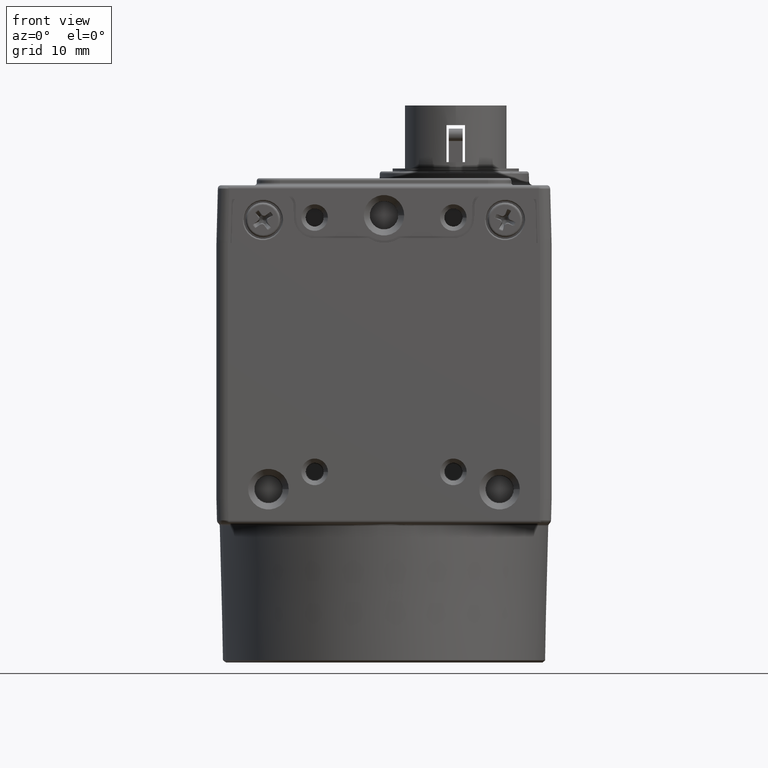
[diagram: clean part render]
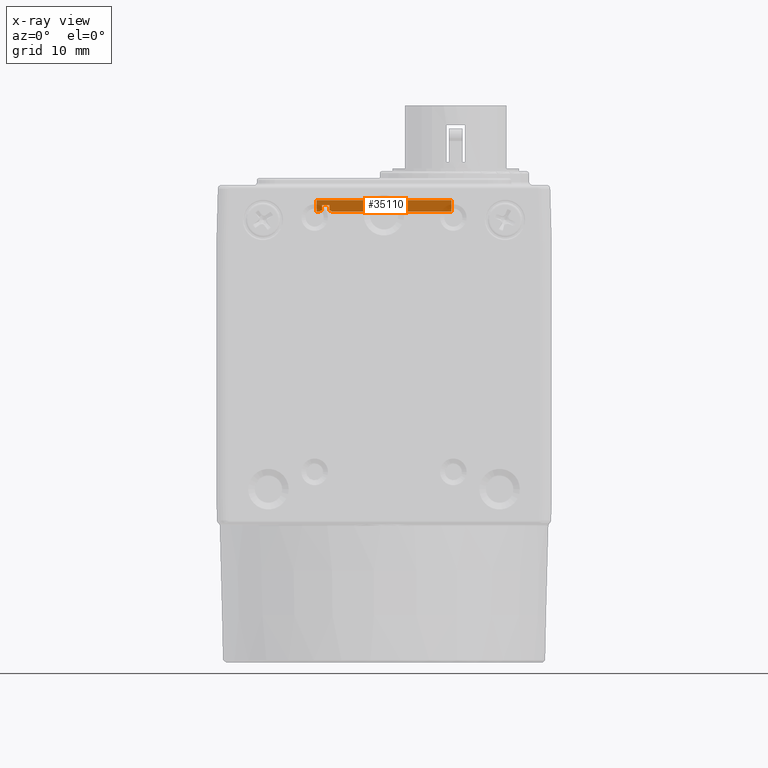
[diagram: x-ray — body ghosted, one internal face saturated and labeled with its STEP entity id]
A machine part, front view, then the same camera in x-ray: the body is ghosted and one INTERNAL B-rep face — a face not visible from any outside direction — is saturated and labeled: STEP entity #35110.
In plain terms, the highlighted planar face has unit normal (0, 1, 0).
Its self-contained STEP definition (entity closure, byte-faithful):
#25704=CARTESIAN_POINT('',(0.210000000000442,-5.620000000000109,39.000208026129258));
#25705=VERTEX_POINT('',#25704);
#25712=CARTESIAN_POINT('',(5.825000000000442,-5.619999999999682,39.000000000000014));
#25713=VERTEX_POINT('',#25712);
#25714=CARTESIAN_POINT('',(0.210000000000442,-5.620000000000109,39.000000000000007));
#25715=DIRECTION('',(1.0,0.0,0.0));
#25716=VECTOR('',#25715,5.614999999999999);
#25717=LINE('',#25714,#25716);
#25718=EDGE_CURVE('',#25705,#25713,#25717,.T.);
#25804=CARTESIAN_POINT('',(-0.789999999999558,-5.620000000000185,39.000208026129258));
#25805=VERTEX_POINT('',#25804);
#25822=CARTESIAN_POINT('',(-4.539999999999559,-5.620000000000470,39.000208026129251));
#25823=VERTEX_POINT('',#25822);
#25830=CARTESIAN_POINT('',(-4.539999999999559,-5.620000000000471,39.0));
#25831=DIRECTION('',(1.0,0.0,0.0));
#25832=VECTOR('',#25831,3.750000000000001);
#25833=LINE('',#25830,#25832);
#25834=EDGE_CURVE('',#25823,#25805,#25833,.T.);
#25882=CARTESIAN_POINT('',(-5.824999999999560,-5.620000000000568,39.0));
#25883=VERTEX_POINT('',#25882);
#25891=CARTESIAN_POINT('',(-5.539999999999558,-5.620000000000545,39.000208026129251));
#25892=VERTEX_POINT('',#25891);
#25893=CARTESIAN_POINT('',(-5.824999999999560,-5.620000000000569,39.0));
#25894=DIRECTION('',(1.0,0.0,0.0));
#25895=VECTOR('',#25894,0.285000000000002);
#25896=LINE('',#25893,#25895);
#25897=EDGE_CURVE('',#25883,#25892,#25896,.T.);
#31081=CARTESIAN_POINT('',(-5.814999999999559,-5.620000000000555,40.000416052258494));
#31082=VERTEX_POINT('',#31081);
#31089=CARTESIAN_POINT('',(-5.824999999999561,-5.620000000000555,40.000416052258494));
#31090=VERTEX_POINT('',#31089);
#31091=CARTESIAN_POINT('',(-5.814999999999559,-5.620000000000555,40.000416052258494));
#31092=DIRECTION('',(-1.0,0.0,0.0));
#31093=VECTOR('',#31092,0.010000000000002);
#31094=LINE('',#31091,#31093);
#31095=EDGE_CURVE('',#31082,#31090,#31094,.T.);
#31122=CARTESIAN_POINT('',(-4.639999999999558,-5.620000000000466,39.100416052258502));
#31123=VERTEX_POINT('',#31122);
#31130=CARTESIAN_POINT('',(-4.639999999999558,-5.620000000000478,39.000416052258501));
#31131=DIRECTION('',(0.0,1.0,0.0));
#31132=DIRECTION('',(1.0,0.0,0.0));
#31133=AXIS2_PLACEMENT_3D('',#31130,#31131,#31132);
#31134=CIRCLE('',#31133,0.100000000000000);
#31135=EDGE_CURVE('',#31123,#25823,#31134,.T.);
#31147=CARTESIAN_POINT('',(-4.714999999999558,-5.620000000000474,39.100416052258502));
#31148=VERTEX_POINT('',#31147);
#31172=CARTESIAN_POINT('',(-4.714999999999558,-5.620000000000474,39.156270863825760));
#31173=VERTEX_POINT('',#31172);
#31180=CARTESIAN_POINT('',(-4.714999999999558,-5.620000000000482,39.156270863825760));
#31181=DIRECTION('',(0.0,0.0,-1.0));
#31182=VECTOR('',#31181,0.055854811567258);
#31183=LINE('',#31180,#31182);
#31184=EDGE_CURVE('',#31173,#31148,#31183,.T.);
#31330=CARTESIAN_POINT('',(-5.364999999999559,-5.620000000000522,39.156270863825753));
#31331=VERTEX_POINT('',#31330);
#31338=CARTESIAN_POINT('',(-5.364999999999559,-5.620000000000522,39.560416052258496));
#31339=VERTEX_POINT('',#31338);
#31340=CARTESIAN_POINT('',(-5.364999999999559,-5.620000000000531,39.560416052258496));
#31341=DIRECTION('',(0.0,0.0,-1.0));
#31342=VECTOR('',#31341,0.404145188432743);
#31343=LINE('',#31340,#31342);
#31344=EDGE_CURVE('',#31339,#31331,#31343,.T.);
#32028=CARTESIAN_POINT('',(-5.439999999999559,-5.620000000000529,39.100416052258495));
#32029=VERTEX_POINT('',#32028);
#32038=CARTESIAN_POINT('',(-5.439999999999557,-5.620000000000539,39.000416052258501));
#32039=DIRECTION('',(0.0,1.0,0.0));
#32040=DIRECTION('',(1.0,0.0,0.0));
#32041=AXIS2_PLACEMENT_3D('',#32038,#32039,#32040);
#32042=CIRCLE('',#32041,0.100000000000000);
#32043=EDGE_CURVE('',#25892,#32029,#32042,.T.);
#32632=CARTESIAN_POINT('',(0.035000000000442,-5.620000000000111,39.156270863825767));
#32633=VERTEX_POINT('',#32632);
#32640=CARTESIAN_POINT('',(0.035000000000442,-5.620000000000111,39.100416052258502));
#32641=VERTEX_POINT('',#32640);
#32642=CARTESIAN_POINT('',(0.035000000000442,-5.620000000000123,39.156270863825767));
#32643=DIRECTION('',(0.0,0.0,-1.0));
#32644=VECTOR('',#32643,0.055854811567258);
#32645=LINE('',#32642,#32644);
#32646=EDGE_CURVE('',#32633,#32641,#32645,.T.);
#32663=CARTESIAN_POINT('',(-0.614999999999559,-5.620000000000161,39.560416052258503));
#32664=VERTEX_POINT('',#32663);
#32671=CARTESIAN_POINT('',(0.035000000000441,-5.620000000000111,39.560416052258503));
#32672=VERTEX_POINT('',#32671);
#32673=CARTESIAN_POINT('',(-0.614999999999559,-5.620000000000161,39.560416052258503));
#32674=DIRECTION('',(1.0,0.0,0.0));
#32675=VECTOR('',#32674,0.650000000000000);
#32676=LINE('',#32673,#32675);
#32677=EDGE_CURVE('',#32664,#32672,#32676,.T.);
#32778=CARTESIAN_POINT('',(0.110000000000442,-5.620000000000106,39.100416052258502));
#32779=VERTEX_POINT('',#32778);
#32786=CARTESIAN_POINT('',(0.110000000000442,-5.620000000000117,39.000416052258508));
#32787=DIRECTION('',(0.0,1.0,0.0));
#32788=DIRECTION('',(1.0,0.0,0.0));
#32789=AXIS2_PLACEMENT_3D('',#32786,#32787,#32788);
#32790=CIRCLE('',#32789,0.100000000000000);
#32791=EDGE_CURVE('',#32779,#25705,#32790,.T.);
#32801=CARTESIAN_POINT('',(-0.689999999999558,-5.620000000000167,39.100416052258502));
#32802=VERTEX_POINT('',#32801);
#32811=CARTESIAN_POINT('',(-0.689999999999558,-5.620000000000179,39.000416052258508));
#32812=DIRECTION('',(0.0,1.0,0.0));
#32813=DIRECTION('',(1.0,0.0,0.0));
#32814=AXIS2_PLACEMENT_3D('',#32811,#32812,#32813);
#32815=CIRCLE('',#32814,0.100000000000000);
#32816=EDGE_CURVE('',#25805,#32802,#32815,.T.);
#32851=CARTESIAN_POINT('',(0.035000000000442,-5.620000000000111,39.100416052258502));
#32852=DIRECTION('',(1.0,0.0,0.0));
#32853=VECTOR('',#32852,0.075000000000000);
#32854=LINE('',#32851,#32853);
#32855=EDGE_CURVE('',#32641,#32779,#32854,.T.);
#32867=CARTESIAN_POINT('',(0.035000000000441,-5.620000000000122,39.560416052258503));
#32868=DIRECTION('',(0.0,0.0,-1.0));
#32869=VECTOR('',#32868,0.404145188432743);
#32870=LINE('',#32867,#32869);
#32871=EDGE_CURVE('',#32672,#32633,#32870,.T.);
#32887=CARTESIAN_POINT('',(-0.614999999999558,-5.620000000000162,39.100416052258502));
#32888=VERTEX_POINT('',#32887);
#32897=CARTESIAN_POINT('',(-0.689999999999558,-5.620000000000167,39.100416052258502));
#32898=DIRECTION('',(1.0,0.0,0.0));
#32899=VECTOR('',#32898,0.075000000000000);
#32900=LINE('',#32897,#32899);
#32901=EDGE_CURVE('',#32802,#32888,#32900,.T.);
#32951=CARTESIAN_POINT('',(-0.614999999999558,-5.620000000000162,39.156270863825767));
#32952=VERTEX_POINT('',#32951);
#32953=CARTESIAN_POINT('',(-0.614999999999558,-5.620000000000172,39.156270863825767));
#32954=DIRECTION('',(0.0,0.0,-1.0));
#32955=VECTOR('',#32954,0.055854811567258);
#32956=LINE('',#32953,#32955);
#32957=EDGE_CURVE('',#32952,#32888,#32956,.T.);
#33056=CARTESIAN_POINT('',(-4.714999999999558,-5.620000000000473,39.560416052258496));
#33057=VERTEX_POINT('',#33056);
#33058=CARTESIAN_POINT('',(-5.364999999999559,-5.620000000000522,39.560416052258496));
#33059=DIRECTION('',(1.0,0.0,0.0));
#33060=VECTOR('',#33059,0.650000000000001);
#33061=LINE('',#33058,#33060);
#33062=EDGE_CURVE('',#31339,#33057,#33061,.T.);
#33146=CARTESIAN_POINT('',(-4.714999999999558,-5.620000000000474,39.100416052258502));
#33147=DIRECTION('',(1.0,0.0,0.0));
#33148=VECTOR('',#33147,0.075000000000000);
#33149=LINE('',#33146,#33148);
#33150=EDGE_CURVE('',#31148,#31123,#33149,.T.);
#33160=CARTESIAN_POINT('',(-5.364999999999559,-5.620000000000522,39.100416052258495));
#33161=VERTEX_POINT('',#33160);
#33162=CARTESIAN_POINT('',(-5.364999999999559,-5.620000000000532,39.156270863825753));
#33163=DIRECTION('',(0.0,0.0,-1.0));
#33164=VECTOR('',#33163,0.055854811567258);
#33165=LINE('',#33162,#33164);
#33166=EDGE_CURVE('',#31331,#33161,#33165,.T.);
#33193=CARTESIAN_POINT('',(-5.439999999999559,-5.620000000000529,39.100416052258495));
#33194=DIRECTION('',(1.0,0.0,0.0));
#33195=VECTOR('',#33194,0.074999999999999);
#33196=LINE('',#33193,#33195);
#33197=EDGE_CURVE('',#32029,#33161,#33196,.T.);
#34530=CARTESIAN_POINT('',(5.815000000000441,-5.619999999999671,40.000416052258515));
#34531=VERTEX_POINT('',#34530);
#34609=CARTESIAN_POINT('',(5.825000000000441,-5.619999999999670,40.000416052258515));
#34610=VERTEX_POINT('',#34609);
#34618=CARTESIAN_POINT('',(5.825000000000441,-5.619999999999670,40.000416052258515));
#34619=DIRECTION('',(-1.0,0.0,0.0));
#34620=VECTOR('',#34619,0.010000000000000);
#34621=LINE('',#34618,#34620);
#34622=EDGE_CURVE('',#34610,#34531,#34621,.T.);
#35048=CARTESIAN_POINT('',(-5.824999999999559,-5.620000000000568,39.000000000000007));
#35049=DIRECTION('',(0.0,0.0,1.0));
#35050=VECTOR('',#35049,1.000416052258494);
#35051=LINE('',#35048,#35050);
#35052=EDGE_CURVE('',#25883,#31090,#35051,.T.);
#35057=CARTESIAN_POINT('',(4.433259E-013,-5.620000000000127,38.350416052258510));
#35058=DIRECTION('',(0.0,1.0,0.0));
#35059=DIRECTION('',(1.0,0.0,0.0));
#35060=AXIS2_PLACEMENT_3D('',#35057,#35058,#35059);
#35061=PLANE('',#35060);
#35062=ORIENTED_EDGE('',*,*,#32791,.F.);
#35063=ORIENTED_EDGE('',*,*,#32855,.F.);
#35064=ORIENTED_EDGE('',*,*,#32646,.F.);
#35065=ORIENTED_EDGE('',*,*,#32871,.F.);
#35066=ORIENTED_EDGE('',*,*,#32677,.F.);
#35067=CARTESIAN_POINT('',(-0.614999999999559,-5.620000000000172,39.560416052258503));
#35068=DIRECTION('',(0.0,0.0,-1.0));
#35069=VECTOR('',#35068,0.404145188432743);
#35070=LINE('',#35067,#35069);
#35071=EDGE_CURVE('',#32664,#32952,#35070,.T.);
#35072=ORIENTED_EDGE('',*,*,#35071,.T.);
#35073=ORIENTED_EDGE('',*,*,#32957,.T.);
#35074=ORIENTED_EDGE('',*,*,#32901,.F.);
#35075=ORIENTED_EDGE('',*,*,#32816,.F.);
#35076=ORIENTED_EDGE('',*,*,#25834,.F.);
#35077=ORIENTED_EDGE('',*,*,#31135,.F.);
#35078=ORIENTED_EDGE('',*,*,#33150,.F.);
#35079=ORIENTED_EDGE('',*,*,#31184,.F.);
#35080=CARTESIAN_POINT('',(-4.714999999999558,-5.620000000000482,39.560416052258496));
#35081=DIRECTION('',(0.0,0.0,-1.0));
#35082=VECTOR('',#35081,0.404145188432743);
#35083=LINE('',#35080,#35082);
#35084=EDGE_CURVE('',#33057,#31173,#35083,.T.);
#35085=ORIENTED_EDGE('',*,*,#35084,.F.);
#35086=ORIENTED_EDGE('',*,*,#33062,.F.);
#35087=ORIENTED_EDGE('',*,*,#31344,.T.);
#35088=ORIENTED_EDGE('',*,*,#33166,.T.);
#35089=ORIENTED_EDGE('',*,*,#33197,.F.);
#35090=ORIENTED_EDGE('',*,*,#32043,.F.);
#35091=ORIENTED_EDGE('',*,*,#25897,.F.);
#35092=ORIENTED_EDGE('',*,*,#35052,.T.);
#35093=ORIENTED_EDGE('',*,*,#31095,.F.);
#35094=CARTESIAN_POINT('',(5.815000000000441,-5.619999999999671,40.000416052258515));
#35095=DIRECTION('',(-1.0,0.0,0.0));
#35096=VECTOR('',#35095,11.630000000000001);
#35097=LINE('',#35094,#35096);
#35098=EDGE_CURVE('',#34531,#31082,#35097,.T.);
#35099=ORIENTED_EDGE('',*,*,#35098,.F.);
#35100=ORIENTED_EDGE('',*,*,#34622,.F.);
#35101=CARTESIAN_POINT('',(5.825000000000443,-5.619999999999682,39.000000000000014));
#35102=DIRECTION('',(0.0,0.0,1.0));
#35103=VECTOR('',#35102,1.000416052258501);
#35104=LINE('',#35101,#35103);
#35105=EDGE_CURVE('',#25713,#34610,#35104,.T.);
#35106=ORIENTED_EDGE('',*,*,#35105,.F.);
#35107=ORIENTED_EDGE('',*,*,#25718,.F.);
#35108=EDGE_LOOP('',(#35062,#35063,#35064,#35065,#35066,#35072,#35073,#35074,#35075,#35076,#35077,#35078,#35079,#35085,#35086,#35087,#35088,#35089,#35090,#35091,#35092,#35093,#35099,#35100,#35106,#35107));
#35109=FACE_OUTER_BOUND('',#35108,.T.);
#35110=ADVANCED_FACE('',(#35109),#35061,.T.);